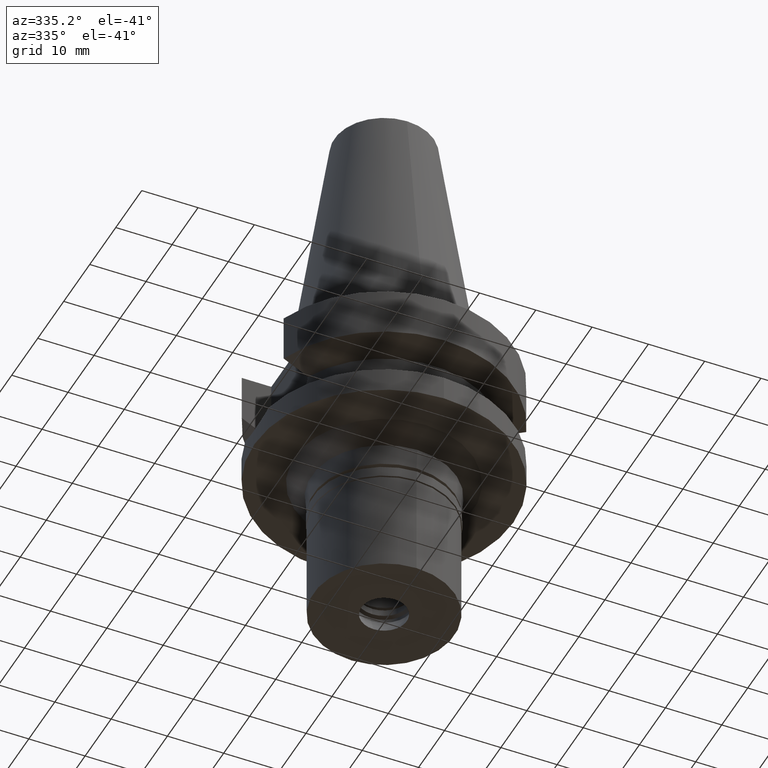
[diagram: clean part render]
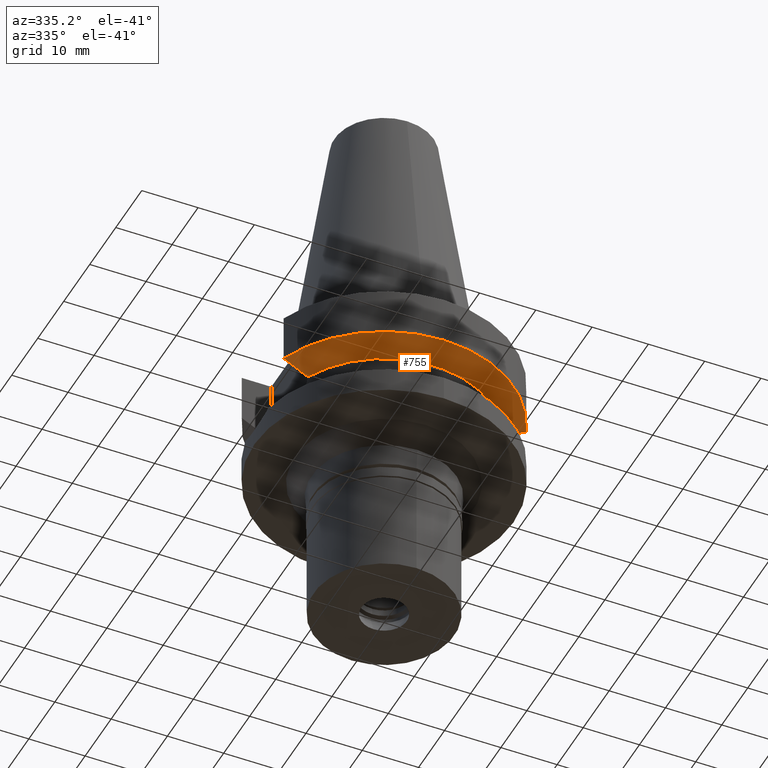
[diagram: same view with one face highlighted and labeled with its STEP entity id]
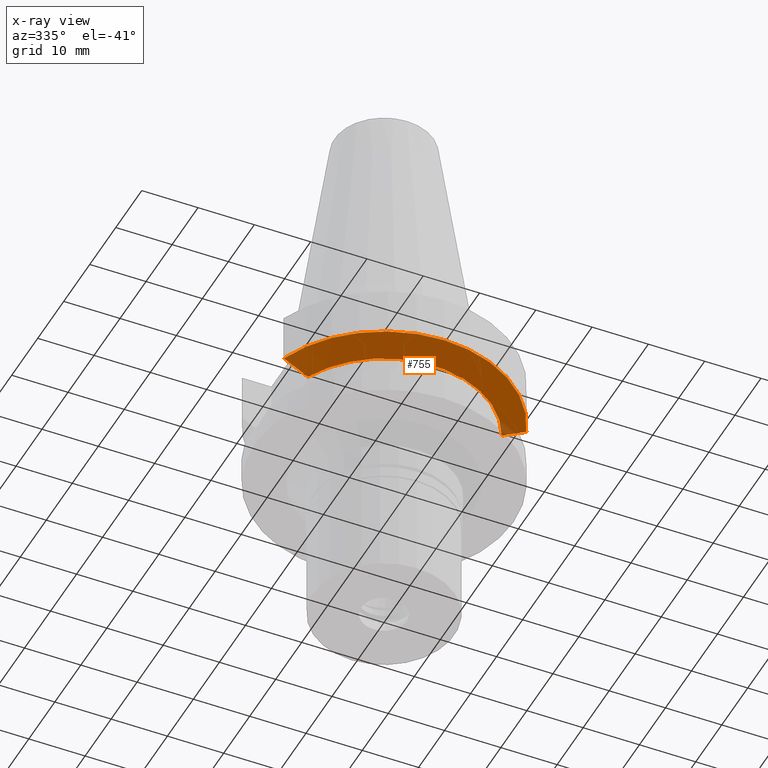
[diagram: x-ray of the same camera — body ghosted, the highlighted face saturated]
A machine part, auxiliary view. The second image highlights one B-rep face of the part: STEP entity #755.
The next image is the same camera in x-ray: the body ghosted, the highlighted face saturated — about 1% of this face is hidden behind the body in this view.
In plain terms, the highlighted conical surface has half-angle 60 deg.
Its self-contained STEP definition (entity closure, byte-faithful):
#5 = CARTESIAN_POINT ( 'NONE',  ( -18.30334766056017060, -8.049999956192328554, -11.30291652811054881 ) ) ;
#10 = VERTEX_POINT ( 'NONE', #2306 ) ;
#59 = EDGE_CURVE ( 'NONE', #2403, #10, #1115, .T. ) ;
#120 = CARTESIAN_POINT ( 'NONE',  ( -19.78174442234422159, -8.049991903459057241, -10.51718567402514282 ) ) ;
#122 = DIRECTION ( 'NONE',  ( 0.0000000000000000000, 0.0000000000000000000, 1.000000000000000000 ) ) ;
#138 = B_SPLINE_CURVE_WITH_KNOTS ( 'NONE', 3,
 ( #1564, #2491, #120, #1575 ),
 .UNSPECIFIED., .F., .F.,
 ( 4, 4 ),
 ( 0.0000000000000000000, 1.000000000000000000 ),
 .UNSPECIFIED. ) ;
#210 = CARTESIAN_POINT ( 'NONE',  ( 17.23531135316000018, -7.996501749113000379, -11.87660739352000050 ) ) ;
#229 = ORIENTED_EDGE ( 'NONE', *, *, #2747, .F. ) ;
#243 = CARTESIAN_POINT ( 'NONE',  ( 0.0000000000000000000, 1.093341284896999988E-14, -11.87660944646999894 ) ) ;
#306 = VERTEX_POINT ( 'NONE', #816 ) ;
#442 = EDGE_CURVE ( 'NONE', #1082, #306, #138, .T. ) ;
#486 = CIRCLE ( 'NONE', #2429, 19.00000000000000000 ) ;
#505 = CARTESIAN_POINT ( 'NONE',  ( -18.96738966519999892, -8.049994318072998922, -10.95000099924999937 ) ) ;
#717 = CARTESIAN_POINT ( 'NONE',  ( -17.23531622874000035, -7.996491146970000408, -11.87660607763999998 ) ) ;
#752 = CARTESIAN_POINT ( 'NONE',  ( -17.72598984840683656, -8.027133614947466356, -11.61218198938708390 ) ) ;
#755 = ADVANCED_FACE ( 'NONE', ( #2479 ), #2093, .T. ) ;
#793 = VERTEX_POINT ( 'NONE', #210 ) ;
#816 = CARTESIAN_POINT ( 'NONE',  ( -18.96738966519999892, -8.049994318072998922, -10.95000099924999937 ) ) ;
#869 = CARTESIAN_POINT ( 'NONE',  ( 17.72682660441592617, -8.027186146836505998, -11.61172867091523919 ) ) ;
#878 = CARTESIAN_POINT ( 'NONE',  ( 19.78176446227738339, -8.050001299918164932, -10.51717305795229151 ) ) ;
#889 = CIRCLE ( 'NONE', #2856, 23.00000000000000000 ) ;
#903 = CARTESIAN_POINT ( 'NONE',  ( 20.64101735201231591, -8.050004185258069711, -10.05624233374762966 ) ) ;
#910 = B_SPLINE_CURVE_WITH_KNOTS ( 'NONE', 3,
 ( #1823, #3038, #869, #2981 ),
 .UNSPECIFIED., .F., .F.,
 ( 4, 4 ),
 ( 0.0000000000000000000, 1.000000000000000000 ),
 .UNSPECIFIED. ) ;
#912 = EDGE_CURVE ( 'NONE', #1449, #306, #1226, .T. ) ;
#921 = CARTESIAN_POINT ( 'NONE',  ( -17.23531622874000035, -7.996491146970000408, -11.87660607763999998 ) ) ;
#1082 = VERTEX_POINT ( 'NONE', #2692 ) ;
#1115 = B_SPLINE_CURVE_WITH_KNOTS ( 'NONE', 3,
 ( #2712, #878, #903, #1578 ),
 .UNSPECIFIED., .F., .F.,
 ( 4, 4 ),
 ( 0.0000000000000000000, 1.000000000000000000 ),
 .UNSPECIFIED. ) ;
#1124 = DIRECTION ( 'NONE',  ( 0.0000000000000000000, 0.0000000000000000000, 1.000000000000000000 ) ) ;
#1177 = EDGE_CURVE ( 'NONE', #1082, #10, #889, .T. ) ;
#1197 = DIRECTION ( 'NONE',  ( 0.0000000000000000000, -1.000000000000000000, 0.0000000000000000000 ) ) ;
#1224 = ORIENTED_EDGE ( 'NONE', *, *, #1177, .F. ) ;
#1226 = B_SPLINE_CURVE_WITH_KNOTS ( 'NONE', 3,
 ( #717, #752, #5, #505 ),
 .UNSPECIFIED., .F., .F.,
 ( 4, 4 ),
 ( 0.0000000000000000000, 1.000000000000000000 ),
 .UNSPECIFIED. ) ;
#1242 = DIRECTION ( 'NONE',  ( 0.0000000000000000000, 0.0000000000000000000, -1.000000000000000000 ) ) ;
#1342 = AXIS2_PLACEMENT_3D ( 'NONE', #2073, #122, #2025 ) ;
#1433 = ORIENTED_EDGE ( 'NONE', *, *, #442, .T. ) ;
#1449 = VERTEX_POINT ( 'NONE', #921 ) ;
#1564 = CARTESIAN_POINT ( 'NONE',  ( -21.54524325238000060, -8.049999577366000025, -9.567211146628999074 ) ) ;
#1575 = CARTESIAN_POINT ( 'NONE',  ( -18.96738966519999892, -8.049994318072998922, -10.95000099924999937 ) ) ;
#1578 = CARTESIAN_POINT ( 'NONE',  ( 21.54524309446999908, -8.050000000000999023, -9.567208369710998639 ) ) ;
#1627 = ORIENTED_EDGE ( 'NONE', *, *, #912, .F. ) ;
#1823 = CARTESIAN_POINT ( 'NONE',  ( 18.96736186693999926, -8.050001277873001015, -10.94999977540000025 ) ) ;
#1842 = DIRECTION ( 'NONE',  ( 0.0000000000000000000, -1.000000000000000000, 0.0000000000000000000 ) ) ;
#1850 = EDGE_LOOP ( 'NONE', ( #1627, #2430, #229, #2456, #1224, #1433 ) ) ;
#2025 = DIRECTION ( 'NONE',  ( 0.0000000000000000000, 1.000000000000000000, 0.0000000000000000000 ) ) ;
#2073 = CARTESIAN_POINT ( 'NONE',  ( 0.0000000000000000000, 1.093341284896999988E-14, -10.72190890808999875 ) ) ;
#2093 = CONICAL_SURFACE ( 'NONE', #1342, 21.00000000000000000, 1.047197551196400456 ) ;
#2299 = CARTESIAN_POINT ( 'NONE',  ( 18.96736186693999926, -8.050001277873001015, -10.94999977540000025 ) ) ;
#2306 = CARTESIAN_POINT ( 'NONE',  ( 21.54524309446999908, -8.050000000000999023, -9.567208369710998639 ) ) ;
#2403 = VERTEX_POINT ( 'NONE', #2299 ) ;
#2429 = AXIS2_PLACEMENT_3D ( 'NONE', #243, #1242, #1197 ) ;
#2430 = ORIENTED_EDGE ( 'NONE', *, *, #2665, .F. ) ;
#2456 = ORIENTED_EDGE ( 'NONE', *, *, #59, .T. ) ;
#2479 = FACE_OUTER_BOUND ( 'NONE', #1850, .T. ) ;
#2491 = CARTESIAN_POINT ( 'NONE',  ( -20.64098922450411777, -8.049999155425163977, -10.05625859809243572 ) ) ;
#2665 = EDGE_CURVE ( 'NONE', #793, #1449, #486, .T. ) ;
#2692 = CARTESIAN_POINT ( 'NONE',  ( -21.54524325238000060, -8.049999577366000025, -9.567211146628999074 ) ) ;
#2706 = CARTESIAN_POINT ( 'NONE',  ( 0.0000000000000000000, 1.093341284896999988E-14, -9.567208369710998639 ) ) ;
#2712 = CARTESIAN_POINT ( 'NONE',  ( 18.96736186693999926, -8.050001277873001015, -10.94999977540000025 ) ) ;
#2747 = EDGE_CURVE ( 'NONE', #2403, #793, #910, .T. ) ;
#2856 = AXIS2_PLACEMENT_3D ( 'NONE', #2706, #1124, #1842 ) ;
#2981 = CARTESIAN_POINT ( 'NONE',  ( 17.23531135316000018, -7.996501749113000379, -11.87660739352000050 ) ) ;
#3038 = CARTESIAN_POINT ( 'NONE',  ( 18.30417677567592349, -8.050000009833846448, -11.30245973914374424 ) ) ;